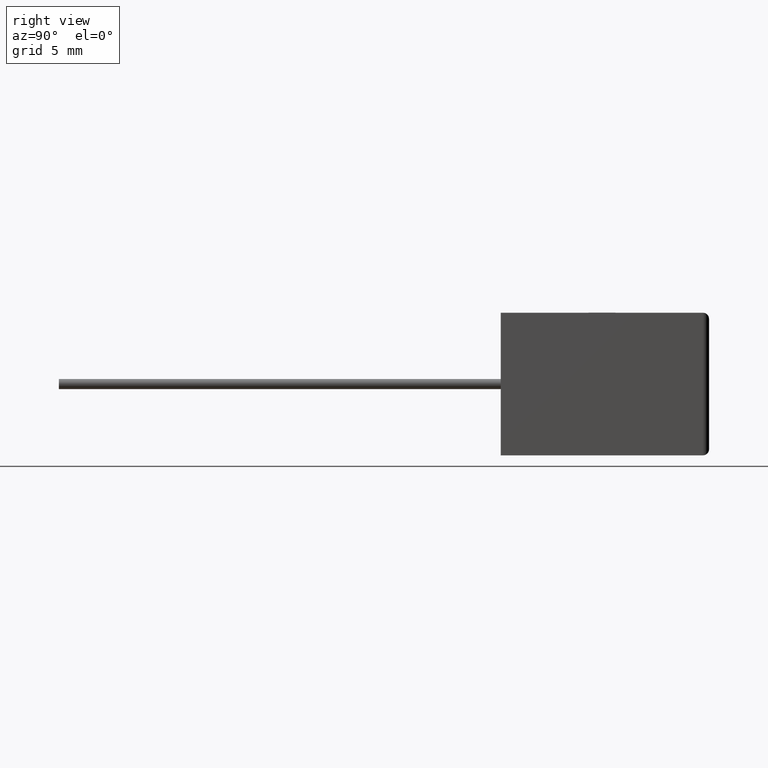
[diagram: clean part render]
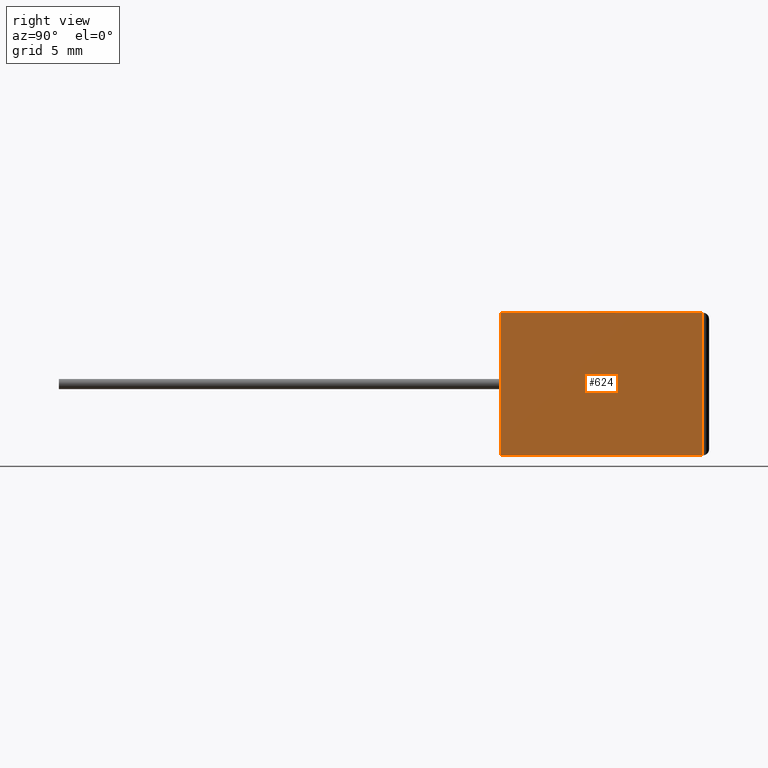
[diagram: same view with one face highlighted and labeled with its STEP entity id]
A machine part, right view. The second image highlights one B-rep face of the part: STEP entity #624.
In plain terms, the highlighted planar face has unit normal (-1, 0, 0).
Its self-contained STEP definition (entity closure, byte-faithful):
#152 = CARTESIAN_POINT ( 'NONE',  ( 24.00000000000000000, 16.00000000000000000, 0.0000000000000000000 ) ) ;
#156 = EDGE_CURVE ( 'NONE', #2086, #359, #2323, .T. ) ;
#168 = ORIENTED_EDGE ( 'NONE', *, *, #1757, .T. ) ;
#206 = DIRECTION ( 'NONE',  ( 0.0000000000000000000, 0.0000000000000000000, 1.000000000000000000 ) ) ;
#232 = EDGE_CURVE ( 'NONE', #2374, #359, #1405, .T. ) ;
#244 = CARTESIAN_POINT ( 'NONE',  ( 24.00000000000000000, 0.0000000000000000000, 11.30000000000000100 ) ) ;
#271 = CARTESIAN_POINT ( 'NONE',  ( 24.00000000000000000, 0.0000000000000000000, 0.0000000000000000000 ) ) ;
#273 = ORIENTED_EDGE ( 'NONE', *, *, #156, .F. ) ;
#290 = FACE_OUTER_BOUND ( 'NONE', #2145, .T. ) ;
#317 = VECTOR ( 'NONE', #484, 1000.000000000000000 ) ;
#359 = VERTEX_POINT ( 'NONE', #2024 ) ;
#376 = ORIENTED_EDGE ( 'NONE', *, *, #1313, .T. ) ;
#484 = DIRECTION ( 'NONE',  ( -0.0000000000000000000, -0.0000000000000000000, 1.000000000000000000 ) ) ;
#624 = ADVANCED_FACE ( 'NONE', ( #290 ), #1558, .F. ) ;
#948 = LINE ( 'NONE', #244, #978 ) ;
#973 = VECTOR ( 'NONE', #2268, 1000.000000000000000 ) ;
#978 = VECTOR ( 'NONE', #2164, 1000.000000000000000 ) ;
#981 = AXIS2_PLACEMENT_3D ( 'NONE', #1364, #994, #206 ) ;
#994 = DIRECTION ( 'NONE',  ( -1.000000000000000000, 0.0000000000000000000, 0.0000000000000000000 ) ) ;
#1053 = CARTESIAN_POINT ( 'NONE',  ( 24.00000000000000000, 16.00000000000000000, 11.30000000000000100 ) ) ;
#1072 = CARTESIAN_POINT ( 'NONE',  ( 24.00000000000000000, 0.0000000000000000000, 11.30000000000000100 ) ) ;
#1313 = EDGE_CURVE ( 'NONE', #2086, #2217, #948, .T. ) ;
#1364 = CARTESIAN_POINT ( 'NONE',  ( 24.00000000000000000, 0.0000000000000000000, 11.30000000000000100 ) ) ;
#1405 = LINE ( 'NONE', #1053, #317 ) ;
#1417 = ORIENTED_EDGE ( 'NONE', *, *, #232, .T. ) ;
#1558 = PLANE ( 'NONE',  #981 ) ;
#1757 = EDGE_CURVE ( 'NONE', #2217, #2374, #2214, .T. ) ;
#1921 = CARTESIAN_POINT ( 'NONE',  ( 24.00000000000000000, 0.0000000000000000000, 11.30000000000000100 ) ) ;
#2024 = CARTESIAN_POINT ( 'NONE',  ( 24.00000000000000000, 16.00000000000000000, 11.30000000000000100 ) ) ;
#2086 = VERTEX_POINT ( 'NONE', #1921 ) ;
#2145 = EDGE_LOOP ( 'NONE', ( #168, #1417, #273, #376 ) ) ;
#2164 = DIRECTION ( 'NONE',  ( -0.0000000000000000000, -0.0000000000000000000, -1.000000000000000000 ) ) ;
#2171 = VECTOR ( 'NONE', #2377, 1000.000000000000000 ) ;
#2214 = LINE ( 'NONE', #2401, #973 ) ;
#2217 = VERTEX_POINT ( 'NONE', #271 ) ;
#2268 = DIRECTION ( 'NONE',  ( 0.0000000000000000000, 1.000000000000000000, 0.0000000000000000000 ) ) ;
#2323 = LINE ( 'NONE', #1072, #2171 ) ;
#2374 = VERTEX_POINT ( 'NONE', #152 ) ;
#2377 = DIRECTION ( 'NONE',  ( 0.0000000000000000000, 1.000000000000000000, 0.0000000000000000000 ) ) ;
#2401 = CARTESIAN_POINT ( 'NONE',  ( 24.00000000000000000, 0.0000000000000000000, 0.0000000000000000000 ) ) ;